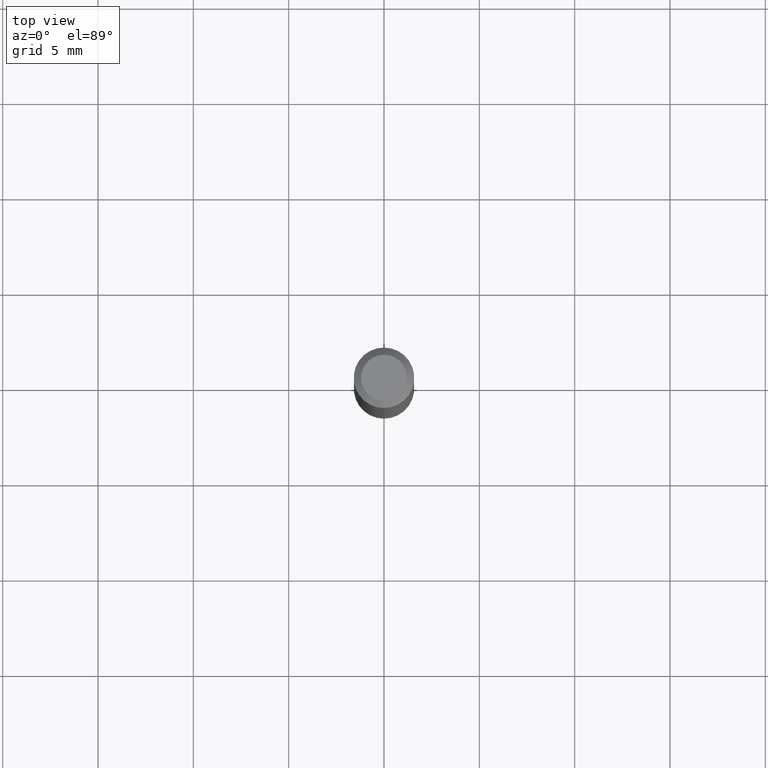
[diagram: clean part render]
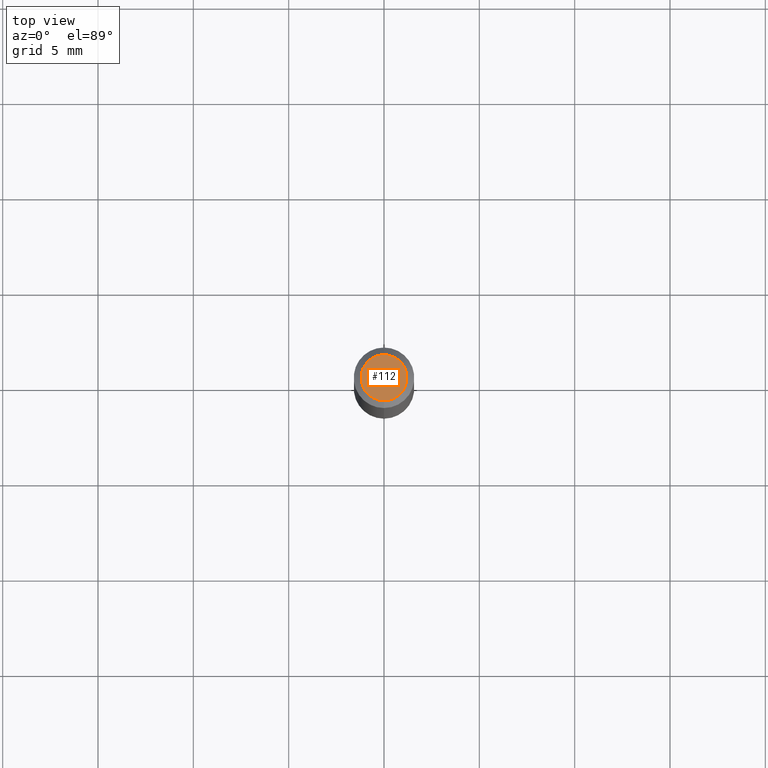
[diagram: same view with one face highlighted and labeled with its STEP entity id]
A machine part, top view. The second image highlights one B-rep face of the part: STEP entity #112.
In plain terms, the highlighted planar face has unit normal (0, -0, -1).
Its self-contained STEP definition (entity closure, byte-faithful):
#19 = EDGE_CURVE ( 'NONE', #304, #198, #90, .T. ) ;
#90 = CIRCLE ( 'NONE', #434, 0.04749999999999999362 ) ;
#110 = FACE_OUTER_BOUND ( 'NONE', #316, .T. ) ;
#112 = ADVANCED_FACE ( 'NONE', ( #110 ), #166, .F. ) ;
#166 = PLANE ( 'NONE',  #232 ) ;
#182 = ORIENTED_EDGE ( 'NONE', *, *, #221, .T. ) ;
#189 = CARTESIAN_POINT ( 'NONE',  ( 1.601801471686390664E-45, -2.286936927672258869E-31, -6.550063541341908739E-17 ) ) ;
#190 = DIRECTION ( 'NONE',  ( 2.445474706583121500E-29, -3.491472889137400899E-15, -1.000000000000000000 ) ) ;
#198 = VERTEX_POINT ( 'NONE', #271 ) ;
#201 = ORIENTED_EDGE ( 'NONE', *, *, #19, .T. ) ;
#221 = EDGE_CURVE ( 'NONE', #198, #304, #486, .T. ) ;
#232 = AXIS2_PLACEMENT_3D ( 'NONE', #436, #190, #395 ) ;
#258 = AXIS2_PLACEMENT_3D ( 'NONE', #267, #440, #391 ) ;
#267 = CARTESIAN_POINT ( 'NONE',  ( 1.601801471686390664E-45, -2.286936927672258869E-31, -6.550063541341908739E-17 ) ) ;
#271 = CARTESIAN_POINT ( 'NONE',  ( 3.840629472727447874E-16, 0.04749999999999999362, -2.313455976474456035E-16 ) ) ;
#304 = VERTEX_POINT ( 'NONE', #364 ) ;
#316 = EDGE_LOOP ( 'NONE', ( #182, #201 ) ) ;
#340 = DIRECTION ( 'NONE',  ( -2.445474706583121780E-29, 3.491472889137400899E-15, 1.000000000000000000 ) ) ;
#364 = CARTESIAN_POINT ( 'NONE',  ( -3.773273898774340269E-16, -0.04749999999999999362, 1.003443268206074287E-16 ) ) ;
#391 = DIRECTION ( 'NONE',  ( -6.982962677686266711E-15, -1.000000000000000000, 3.491472889137400899E-15 ) ) ;
#395 = DIRECTION ( 'NONE',  ( 6.982962677686265922E-15, 1.000000000000000000, -3.491472889137400899E-15 ) ) ;
#424 = DIRECTION ( 'NONE',  ( -6.982962677686266711E-15, -1.000000000000000000, 3.491472889137400899E-15 ) ) ;
#434 = AXIS2_PLACEMENT_3D ( 'NONE', #189, #340, #424 ) ;
#436 = CARTESIAN_POINT ( 'NONE',  ( 3.316907271900976096E-16, 0.04749999999999999362, -1.985952799407360598E-16 ) ) ;
#440 = DIRECTION ( 'NONE',  ( -2.445474706583121780E-29, 3.491472889137400899E-15, 1.000000000000000000 ) ) ;
#486 = CIRCLE ( 'NONE', #258, 0.04749999999999999362 ) ;